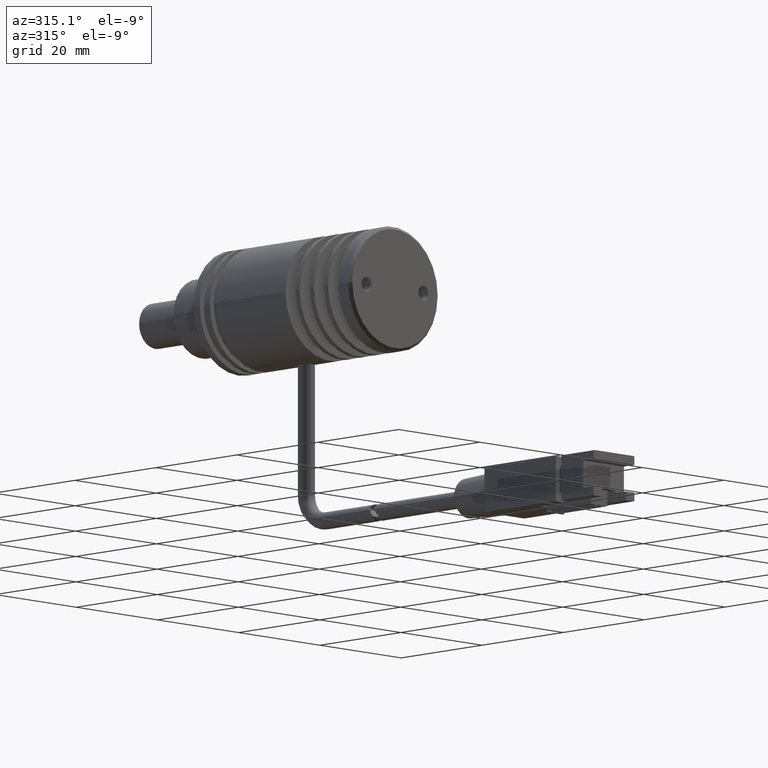
[diagram: clean part render]
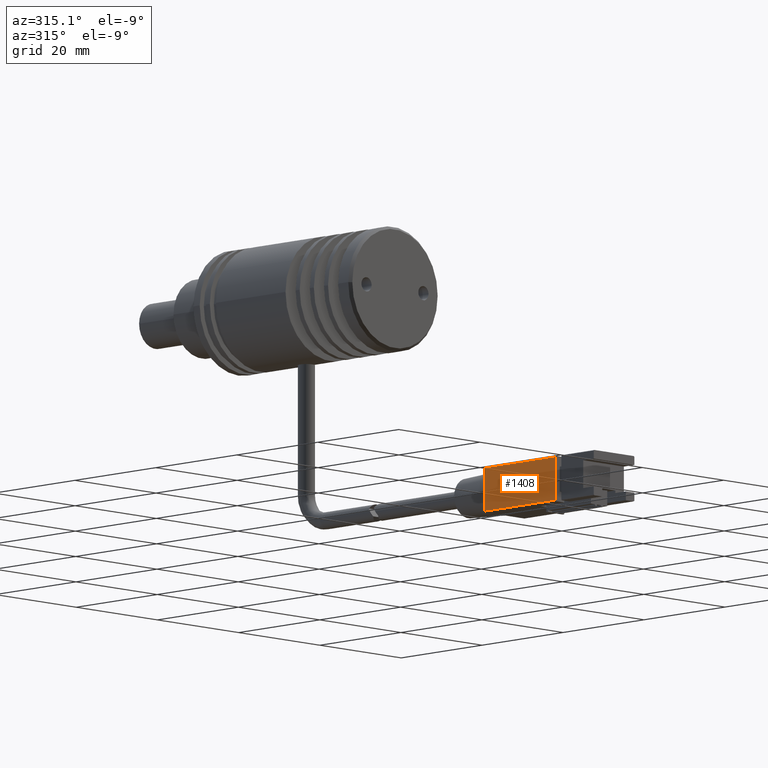
[diagram: same view with one face highlighted and labeled with its STEP entity id]
A machine part, auxiliary view. The second image highlights one B-rep face of the part: STEP entity #1408.
In plain terms, the highlighted planar face has unit normal (1, 0, 0).
Its self-contained STEP definition (entity closure, byte-faithful):
#7 = VECTOR ( 'NONE', #2329, 1000.000000000000000 ) ;
#76 = CARTESIAN_POINT ( 'NONE',  ( -31.28038219277355125, -52.15289768701185835, 24.00000000000808953 ) ) ;
#82 = CARTESIAN_POINT ( 'NONE',  ( -31.28038219277355125, -52.15289768701185835, 16.40000000000808811 ) ) ;
#156 = EDGE_LOOP ( 'NONE', ( #2558, #1242, #549, #1867 ) ) ;
#212 = VERTEX_POINT ( 'NONE', #2653 ) ;
#239 = CARTESIAN_POINT ( 'NONE',  ( -31.28038219277355125, -52.15289768701185835, 24.00000000000808598 ) ) ;
#291 = LINE ( 'NONE', #737, #2775 ) ;
#323 = VECTOR ( 'NONE', #692, 1000.000000000000000 ) ;
#547 = CARTESIAN_POINT ( 'NONE',  ( -31.28038219277355125, -79.15289768701185835, 24.00000000000808598 ) ) ;
#549 = ORIENTED_EDGE ( 'NONE', *, *, #1496, .F. ) ;
#692 = DIRECTION ( 'NONE',  ( 5.780579582632218254E-32, 6.123233995736774664E-17, -1.000000000000000000 ) ) ;
#737 = CARTESIAN_POINT ( 'NONE',  ( -31.28038219277355125, -69.75289768701186688, 16.20000000000809592 ) ) ;
#766 = CARTESIAN_POINT ( 'NONE',  ( -31.28038219277355125, -79.15289768701185835, 16.40000000000808811 ) ) ;
#880 = PLANE ( 'NONE',  #2274 ) ;
#881 = VERTEX_POINT ( 'NONE', #1003 ) ;
#1003 = CARTESIAN_POINT ( 'NONE',  ( -31.28038219277355125, -69.75289768701186688, 24.00000000000808598 ) ) ;
#1187 = EDGE_CURVE ( 'NONE', #1952, #2029, #2718, .T. ) ;
#1191 = DIRECTION ( 'NONE',  ( -1.141265444721584990E-16, -9.032738145093530394E-32, 1.000000000000000000 ) ) ;
#1227 = EDGE_CURVE ( 'NONE', #212, #881, #291, .T. ) ;
#1242 = ORIENTED_EDGE ( 'NONE', *, *, #1187, .T. ) ;
#1408 = ADVANCED_FACE ( 'NONE', ( #1745 ), #880, .F. ) ;
#1438 = DIRECTION ( 'NONE',  ( 1.000000000000000000, 6.245004513516503075E-17, 1.141265444721584990E-16 ) ) ;
#1496 = EDGE_CURVE ( 'NONE', #212, #2029, #2683, .T. ) ;
#1581 = CARTESIAN_POINT ( 'NONE',  ( -31.28038219277355125, -79.15289768701185835, 16.40000000000808811 ) ) ;
#1632 = DIRECTION ( 'NONE',  ( -6.162975822039155825E-32, -8.320017359752858885E-32, 1.000000000000000000 ) ) ;
#1647 = LINE ( 'NONE', #547, #7 ) ;
#1745 = FACE_OUTER_BOUND ( 'NONE', #156, .T. ) ;
#1867 = ORIENTED_EDGE ( 'NONE', *, *, #1227, .T. ) ;
#1952 = VERTEX_POINT ( 'NONE', #239 ) ;
#2029 = VERTEX_POINT ( 'NONE', #82 ) ;
#2259 = DIRECTION ( 'NONE',  ( -6.245004513516503075E-17, 1.000000000000000000, 8.320017359752858885E-32 ) ) ;
#2274 = AXIS2_PLACEMENT_3D ( 'NONE', #766, #1438, #1191 ) ;
#2329 = DIRECTION ( 'NONE',  ( 6.245004513516504307E-17, -1.000000000000000000, -6.123233995736774664E-17 ) ) ;
#2452 = EDGE_CURVE ( 'NONE', #1952, #881, #1647, .T. ) ;
#2510 = VECTOR ( 'NONE', #2259, 1000.000000000000000 ) ;
#2558 = ORIENTED_EDGE ( 'NONE', *, *, #2452, .F. ) ;
#2653 = CARTESIAN_POINT ( 'NONE',  ( -31.28038219277355125, -69.75289768701186688, 16.40000000000808811 ) ) ;
#2683 = LINE ( 'NONE', #1581, #2510 ) ;
#2718 = LINE ( 'NONE', #76, #323 ) ;
#2775 = VECTOR ( 'NONE', #1632, 1000.000000000000000 ) ;